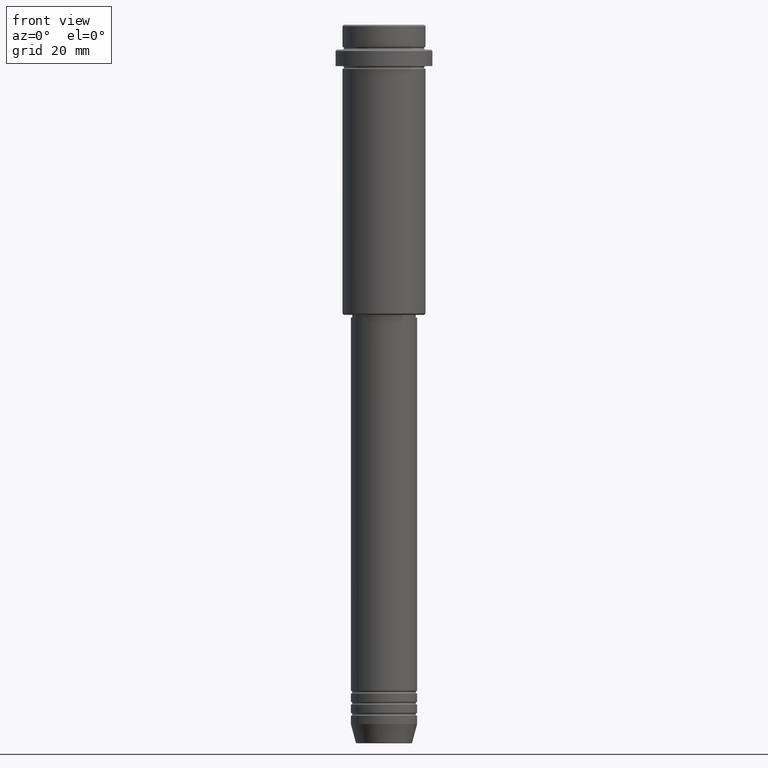
[diagram: clean part render]
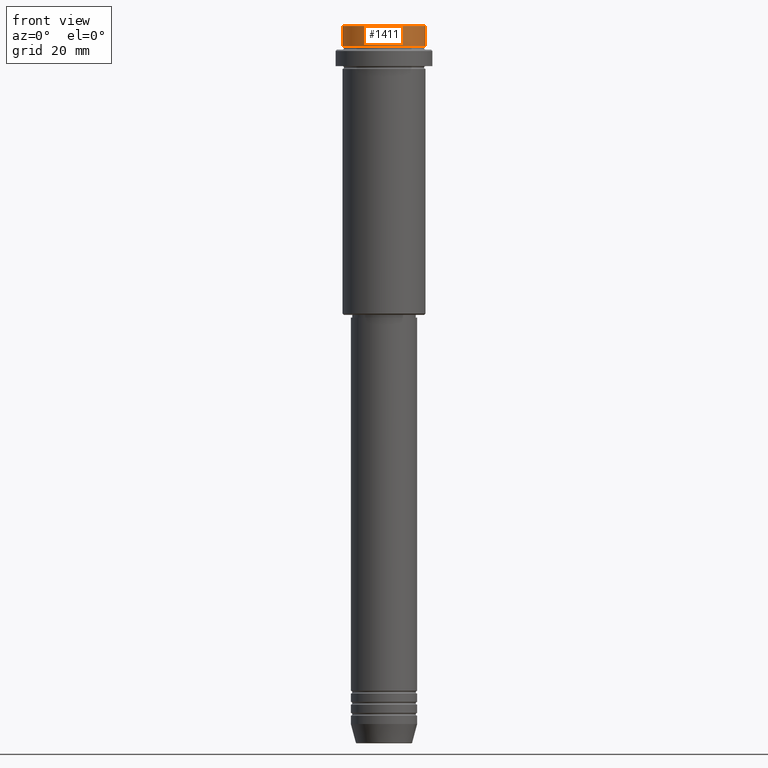
[diagram: same view with one face highlighted and labeled with its STEP entity id]
A machine part, front view. The second image highlights one B-rep face of the part: STEP entity #1411.
In plain terms, the highlighted cylindrical surface (partial cylindrical patch) has radius 15 mm, axis along (-0, -0, 1).
Its self-contained STEP definition (entity closure, byte-faithful):
#93 = DIRECTION ( 'NONE',  ( -0.000000000000000000, -0.000000000000000000, 1.000000000000000000 ) ) ;
#138 = AXIS2_PLACEMENT_3D ( 'NONE', #504, #93, #1177 ) ;
#140 = CARTESIAN_POINT ( 'NONE',  ( -15.00000000000000000, 1.836970198721029589E-15, 0.000000000000000000 ) ) ;
#187 = CARTESIAN_POINT ( 'NONE',  ( 0.000000000000000000, 0.000000000000000000, 0.000000000000000000 ) ) ;
#218 = DIRECTION ( 'NONE',  ( -0.000000000000000000, -0.000000000000000000, 1.000000000000000000 ) ) ;
#236 = ORIENTED_EDGE ( 'NONE', *, *, #257, .F. ) ;
#257 = EDGE_CURVE ( 'NONE', #1394, #952, #1121, .T. ) ;
#368 = CIRCLE ( 'NONE', #138, 15.00000000000000000 ) ;
#369 = LINE ( 'NONE', #828, #998 ) ;
#373 = EDGE_CURVE ( 'NONE', #655, #1261, #369, .T. ) ;
#388 = ORIENTED_EDGE ( 'NONE', *, *, #373, .T. ) ;
#504 = CARTESIAN_POINT ( 'NONE',  ( 0.000000000000000000, 0.000000000000000000, -7.999999999999998224 ) ) ;
#516 = FACE_OUTER_BOUND ( 'NONE', #1172, .T. ) ;
#524 = CIRCLE ( 'NONE', #1253, 15.00000000000000000 ) ;
#631 = VECTOR ( 'NONE', #218, 1000.000000000000000 ) ;
#655 = VERTEX_POINT ( 'NONE', #1103 ) ;
#805 = DIRECTION ( 'NONE',  ( 0.000000000000000000, 0.000000000000000000, -1.000000000000000000 ) ) ;
#828 = CARTESIAN_POINT ( 'NONE',  ( 15.00000000000000000, 0.000000000000000000, 0.000000000000000000 ) ) ;
#837 = CYLINDRICAL_SURFACE ( 'NONE', #1074, 15.00000000000000000 ) ;
#854 = CARTESIAN_POINT ( 'NONE',  ( -15.00000000000000000, 1.836970198721029589E-15, -0.5000000000000108802 ) ) ;
#891 = ORIENTED_EDGE ( 'NONE', *, *, #1229, .T. ) ;
#917 = DIRECTION ( 'NONE',  ( -0.000000000000000000, -0.000000000000000000, 1.000000000000000000 ) ) ;
#923 = DIRECTION ( 'NONE',  ( 1.000000000000000000, 0.000000000000000000, 0.000000000000000000 ) ) ;
#929 = DIRECTION ( 'NONE',  ( 1.000000000000000000, 0.000000000000000000, 0.000000000000000000 ) ) ;
#952 = VERTEX_POINT ( 'NONE', #854 ) ;
#959 = DIRECTION ( 'NONE',  ( -0.000000000000000000, -0.000000000000000000, 1.000000000000000000 ) ) ;
#998 = VECTOR ( 'NONE', #917, 1000.000000000000000 ) ;
#1043 = ORIENTED_EDGE ( 'NONE', *, *, #1344, .T. ) ;
#1074 = AXIS2_PLACEMENT_3D ( 'NONE', #187, #959, #929 ) ;
#1103 = CARTESIAN_POINT ( 'NONE',  ( 15.00000000000000000, 0.000000000000000000, -7.999999999999998224 ) ) ;
#1121 = LINE ( 'NONE', #140, #631 ) ;
#1150 = CARTESIAN_POINT ( 'NONE',  ( 15.00000000000000000, 0.000000000000000000, -0.5000000000000108802 ) ) ;
#1172 = EDGE_LOOP ( 'NONE', ( #236, #1043, #388, #891 ) ) ;
#1177 = DIRECTION ( 'NONE',  ( 1.000000000000000000, 0.000000000000000000, 0.000000000000000000 ) ) ;
#1229 = EDGE_CURVE ( 'NONE', #1261, #952, #524, .T. ) ;
#1253 = AXIS2_PLACEMENT_3D ( 'NONE', #1352, #805, #923 ) ;
#1261 = VERTEX_POINT ( 'NONE', #1150 ) ;
#1287 = CARTESIAN_POINT ( 'NONE',  ( -15.00000000000000000, 1.836970198721029589E-15, -7.999999999999998224 ) ) ;
#1344 = EDGE_CURVE ( 'NONE', #1394, #655, #368, .T. ) ;
#1352 = CARTESIAN_POINT ( 'NONE',  ( 0.000000000000000000, 0.000000000000000000, -0.5000000000000108802 ) ) ;
#1394 = VERTEX_POINT ( 'NONE', #1287 ) ;
#1411 = ADVANCED_FACE ( 'NONE', ( #516 ), #837, .T. ) ;